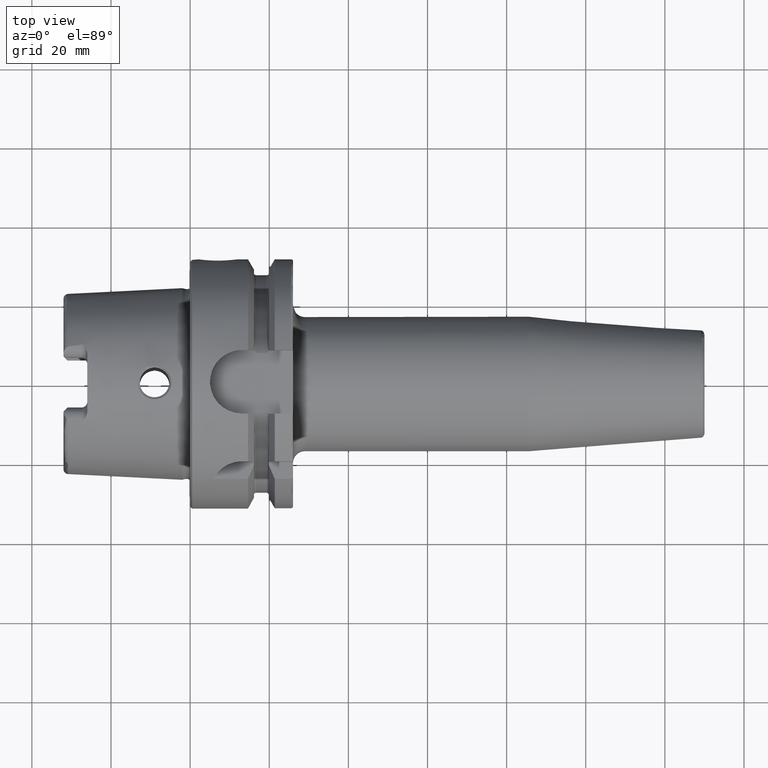
[diagram: clean part render]
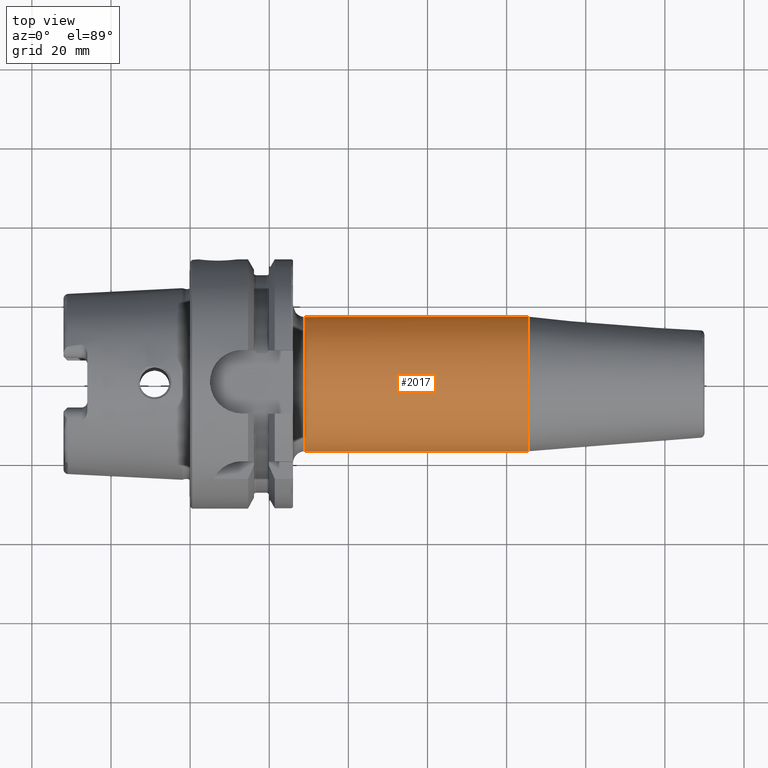
[diagram: same view with one face highlighted and labeled with its STEP entity id]
A machine part, top view. The second image highlights one B-rep face of the part: STEP entity #2017.
In plain terms, the highlighted cylindrical surface (bore or boss wall) has radius 17 mm, axis along (1, 0, 0).
Its self-contained STEP definition (entity closure, byte-faithful):
#181=CYLINDRICAL_SURFACE('',#2179,17.);
#224=FACE_OUTER_BOUND('',#348,.T.);
#348=EDGE_LOOP('',(#1391,#1392,#1393,#1394,#1395));
#475=LINE('',#3090,#585);
#585=VECTOR('',#2475,17.);
#700=CIRCLE('',#2173,17.);
#701=CIRCLE('',#2175,17.);
#704=CIRCLE('',#2178,17.);
#831=VERTEX_POINT('',#3078);
#832=VERTEX_POINT('',#3082);
#833=VERTEX_POINT('',#3083);
#1046=EDGE_CURVE('',#831,#831,#700,.T.);
#1047=EDGE_CURVE('',#832,#833,#701,.T.);
#1050=EDGE_CURVE('',#833,#832,#704,.T.);
#1051=EDGE_CURVE('',#831,#832,#475,.T.);
#1391=ORIENTED_EDGE('',*,*,#1046,.F.);
#1392=ORIENTED_EDGE('',*,*,#1051,.T.);
#1393=ORIENTED_EDGE('',*,*,#1050,.F.);
#1394=ORIENTED_EDGE('',*,*,#1047,.F.);
#1395=ORIENTED_EDGE('',*,*,#1051,.F.);
#2017=ADVANCED_FACE('',(#224),#181,.T.);
#2173=AXIS2_PLACEMENT_3D('',#3080,#2461,#2462);
#2175=AXIS2_PLACEMENT_3D('',#3084,#2465,#2466);
#2178=AXIS2_PLACEMENT_3D('',#3088,#2471,#2472);
#2179=AXIS2_PLACEMENT_3D('',#3089,#2473,#2474);
#2461=DIRECTION('center_axis',(1.,0.,0.));
#2462=DIRECTION('ref_axis',(0.,0.,-1.));
#2465=DIRECTION('center_axis',(-1.,0.,0.));
#2466=DIRECTION('ref_axis',(0.,-1.,-1.22464679914735E-16));
#2471=DIRECTION('center_axis',(-1.,0.,0.));
#2472=DIRECTION('ref_axis',(0.,-1.,-1.22464679914735E-16));
#2473=DIRECTION('center_axis',(1.,0.,0.));
#2474=DIRECTION('ref_axis',(0.,1.,0.));
#2475=DIRECTION('',(-1.,0.,0.));
#3078=CARTESIAN_POINT('',(85.5282834233888,-17.,-2.0818995585505E-15));
#3080=CARTESIAN_POINT('Origin',(85.5282834233888,0.,0.));
#3082=CARTESIAN_POINT('',(29.,-17.,-2.0818995585505E-15));
#3083=CARTESIAN_POINT('',(29.,-2.0818995585505E-15,-17.));
#3084=CARTESIAN_POINT('Origin',(29.,0.,0.));
#3088=CARTESIAN_POINT('Origin',(29.,0.,0.));
#3089=CARTESIAN_POINT('Origin',(55.7641417116944,0.,0.));
#3090=CARTESIAN_POINT('',(55.7641417116944,-17.,-2.0818995585505E-15));